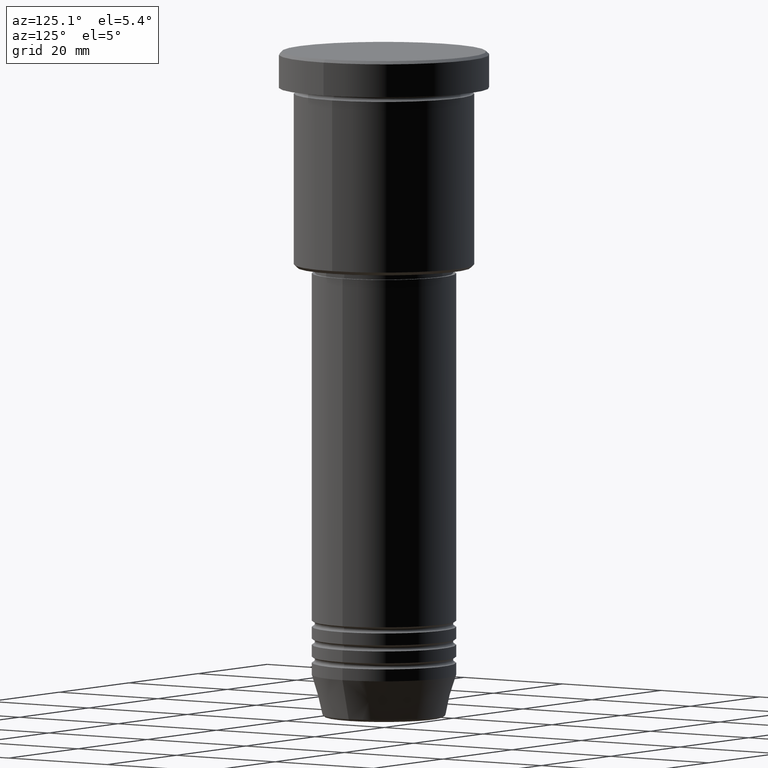
[diagram: clean part render]
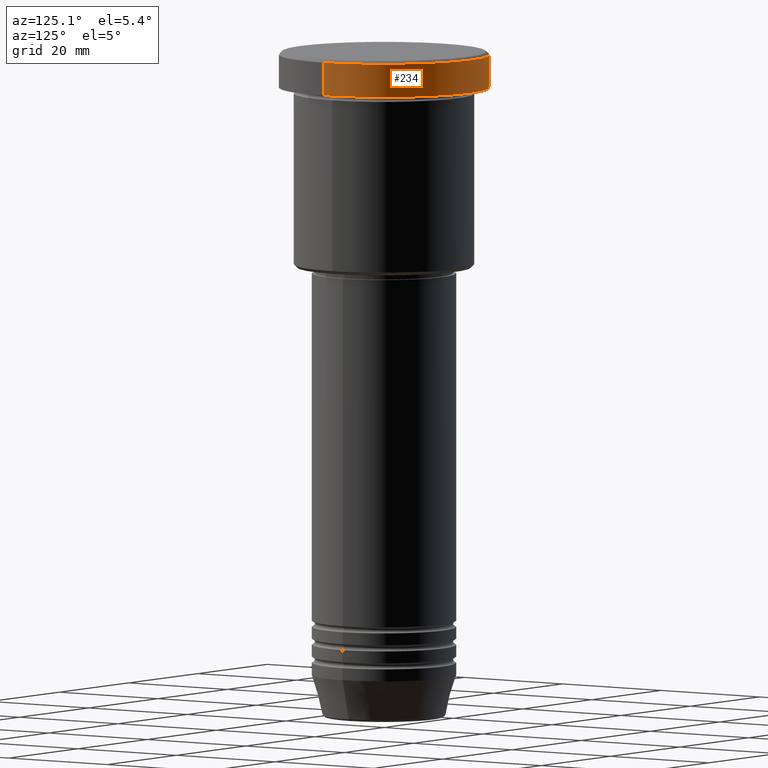
[diagram: same view with one face highlighted and labeled with its STEP entity id]
A machine part, auxiliary view. The second image highlights one B-rep face of the part: STEP entity #234.
In plain terms, the highlighted cylindrical surface (partial cylindrical patch) has radius 17.5 mm, axis along (-0, -0, 1).
Its self-contained STEP definition (entity closure, byte-faithful):
#22 = CIRCLE ( 'NONE', #1038, 17.50000000000000000 ) ;
#33 = LINE ( 'NONE', #1013, #830 ) ;
#54 = DIRECTION ( 'NONE',  ( 1.000000000000000000, 0.000000000000000000, 0.000000000000000000 ) ) ;
#61 = EDGE_LOOP ( 'NONE', ( #85, #267, #504, #215 ) ) ;
#85 = ORIENTED_EDGE ( 'NONE', *, *, #863, .T. ) ;
#112 = CARTESIAN_POINT ( 'NONE',  ( 0.000000000000000000, 0.000000000000000000, -0.5000000000000281997 ) ) ;
#125 = VERTEX_POINT ( 'NONE', #858 ) ;
#147 = CARTESIAN_POINT ( 'NONE',  ( -17.50000000000000000, 2.143131898507868248E-15, -0.5000000000000281997 ) ) ;
#169 = CARTESIAN_POINT ( 'NONE',  ( -17.50000000000000000, 2.143131898507868248E-15, 0.000000000000000000 ) ) ;
#203 = VECTOR ( 'NONE', #974, 1000.000000000000000 ) ;
#215 = ORIENTED_EDGE ( 'NONE', *, *, #1139, .F. ) ;
#220 = DIRECTION ( 'NONE',  ( 1.000000000000000000, 0.000000000000000000, 0.000000000000000000 ) ) ;
#221 = EDGE_CURVE ( 'NONE', #903, #458, #340, .T. ) ;
#234 = ADVANCED_FACE ( 'NONE', ( #877 ), #515, .T. ) ;
#256 = AXIS2_PLACEMENT_3D ( 'NONE', #112, #485, #417 ) ;
#267 = ORIENTED_EDGE ( 'NONE', *, *, #221, .T. ) ;
#319 = DIRECTION ( 'NONE',  ( -0.000000000000000000, -0.000000000000000000, 1.000000000000000000 ) ) ;
#334 = CARTESIAN_POINT ( 'NONE',  ( 0.000000000000000000, 0.000000000000000000, 0.000000000000000000 ) ) ;
#340 = LINE ( 'NONE', #169, #203 ) ;
#417 = DIRECTION ( 'NONE',  ( 1.000000000000000000, 0.000000000000000000, 0.000000000000000000 ) ) ;
#458 = VERTEX_POINT ( 'NONE', #147 ) ;
#485 = DIRECTION ( 'NONE',  ( 0.000000000000000000, 0.000000000000000000, -1.000000000000000000 ) ) ;
#504 = ORIENTED_EDGE ( 'NONE', *, *, #881, .T. ) ;
#515 = CYLINDRICAL_SURFACE ( 'NONE', #633, 17.50000000000000000 ) ;
#568 = CIRCLE ( 'NONE', #256, 17.50000000000000000 ) ;
#594 = CARTESIAN_POINT ( 'NONE',  ( -17.50000000000000000, 2.143131898507868248E-15, -5.999999999999995559 ) ) ;
#633 = AXIS2_PLACEMENT_3D ( 'NONE', #334, #1066, #54 ) ;
#830 = VECTOR ( 'NONE', #1122, 1000.000000000000000 ) ;
#858 = CARTESIAN_POINT ( 'NONE',  ( 17.50000000000000000, 0.000000000000000000, -0.5000000000000281997 ) ) ;
#863 = EDGE_CURVE ( 'NONE', #1134, #903, #22, .T. ) ;
#877 = FACE_OUTER_BOUND ( 'NONE', #61, .T. ) ;
#881 = EDGE_CURVE ( 'NONE', #458, #125, #568, .T. ) ;
#903 = VERTEX_POINT ( 'NONE', #594 ) ;
#974 = DIRECTION ( 'NONE',  ( -0.000000000000000000, -0.000000000000000000, 1.000000000000000000 ) ) ;
#988 = CARTESIAN_POINT ( 'NONE',  ( 17.50000000000000000, 0.000000000000000000, -5.999999999999995559 ) ) ;
#1013 = CARTESIAN_POINT ( 'NONE',  ( 17.50000000000000000, 0.000000000000000000, 0.000000000000000000 ) ) ;
#1038 = AXIS2_PLACEMENT_3D ( 'NONE', #1048, #319, #220 ) ;
#1048 = CARTESIAN_POINT ( 'NONE',  ( 0.000000000000000000, 0.000000000000000000, -5.999999999999995559 ) ) ;
#1066 = DIRECTION ( 'NONE',  ( -0.000000000000000000, -0.000000000000000000, 1.000000000000000000 ) ) ;
#1122 = DIRECTION ( 'NONE',  ( -0.000000000000000000, -0.000000000000000000, 1.000000000000000000 ) ) ;
#1134 = VERTEX_POINT ( 'NONE', #988 ) ;
#1139 = EDGE_CURVE ( 'NONE', #1134, #125, #33, .T. ) ;